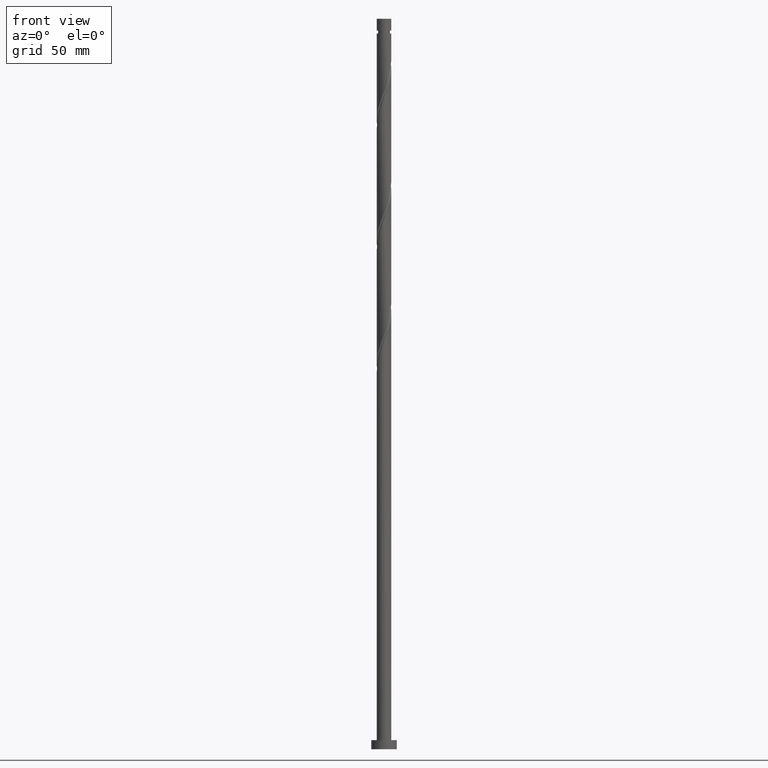
[diagram: clean part render]
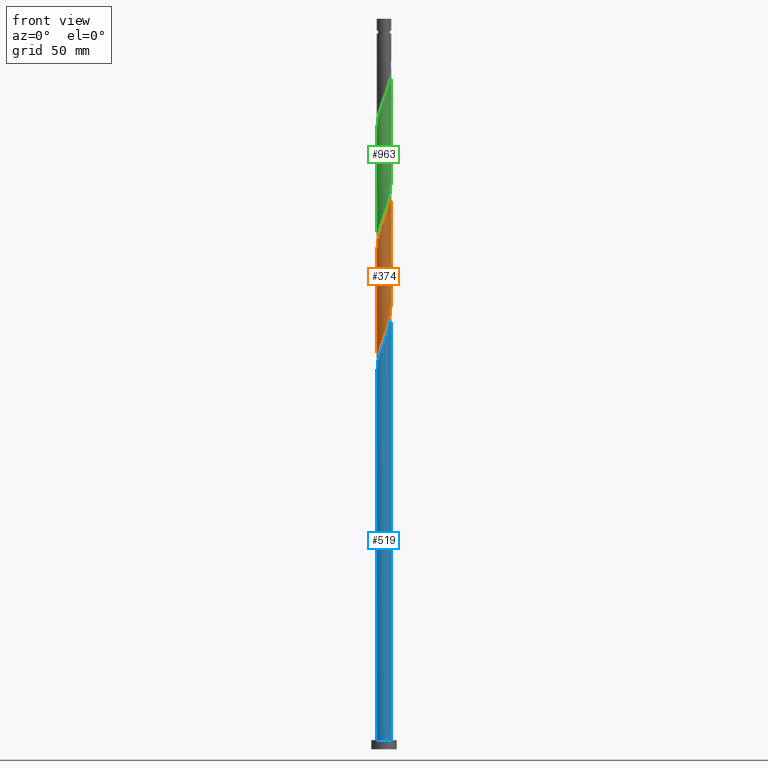
[diagram: same view with three faces highlighted in distinct colors, each labeled with its STEP entity id]
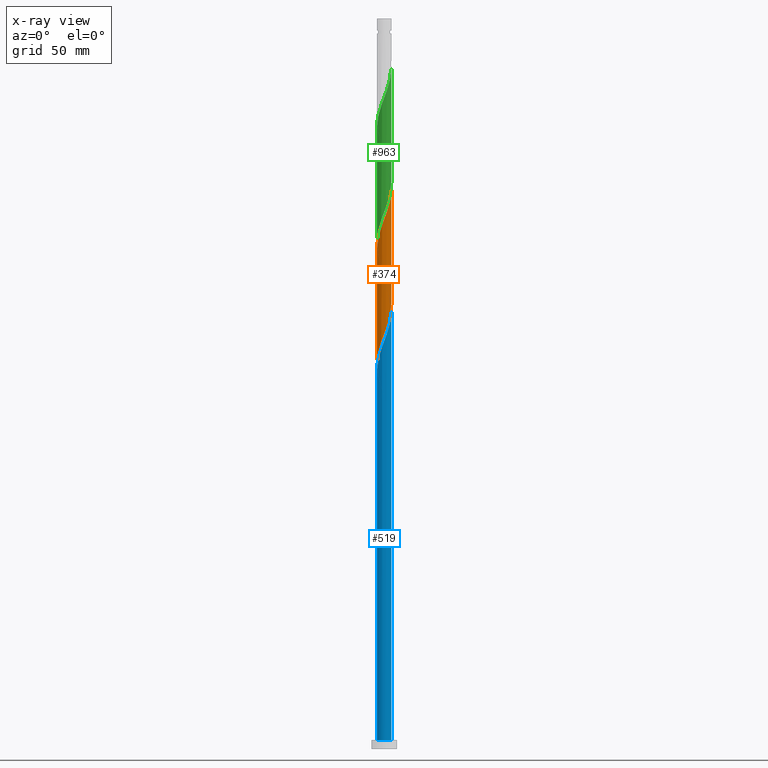
[diagram: x-ray of the same camera — body ghosted, the three highlighted faces saturated]
A machine part, front view with three faces highlighted in distinct colors.
The next image is the same camera in x-ray (body ghosted, the three faces saturated) — at least one of them is partly hidden behind the body in this view.
Their STEP definitions:

[orange] entity #374 — the highlighted cylindrical surface (edge-blend (fillet) strip) has radius 4 mm, axis along (-0, -0, -1).
#26 = CARTESIAN_POINT ( 'NONE',  ( -3.482167122072590715, -1.968378046503451051, 278.5537905055193733 ) ) ;
#35 = CARTESIAN_POINT ( 'NONE',  ( -1.660148792339431578, -3.639217771347844632, 285.2204571721858315 ) ) ;
#45 = CARTESIAN_POINT ( 'NONE',  ( -3.232234306894791853, -2.393618973367495961, 217.4426793944081453 ) ) ;
#82 = VERTEX_POINT ( 'NONE', #641 ) ;
#88 = CARTESIAN_POINT ( 'NONE',  ( 4.000000000000007105, 3.198960900022307463E-15, 306.4283472619977715 ) ) ;
#108 = CARTESIAN_POINT ( 'NONE',  ( 3.275282252781091419, -2.334368558936171567, 237.4426793944081453 ) ) ;
#143 = CARTESIAN_POINT ( 'NONE',  ( -2.663940864372330797, -3.013331955735995216, 219.6649016166304023 ) ) ;
#161 = CARTESIAN_POINT ( 'NONE',  ( 1.979220423070280122, -3.501347872067852585, 295.2204571721858883 ) ) ;
#168 = CARTESIAN_POINT ( 'NONE',  ( -3.941592455888989655, -0.8003744848579158466, 275.2204571721858315 ) ) ;
#183 = CARTESIAN_POINT ( 'NONE',  ( -3.689051991364082461, -1.602387534070729425, 277.4426793944081169 ) ) ;
#203 = CARTESIAN_POINT ( 'NONE',  ( -3.981729436060738703, -0.3818778574459181785, 274.1093460610748593 ) ) ;
#219 = CARTESIAN_POINT ( 'NONE',  ( 2.663940864372333461, -3.013331955736001877, 297.4426793944081169 ) ) ;
#344 = CARTESIAN_POINT ( 'NONE',  ( -4.000000000000007105, -0.1913759971469952414, 273.6035624542284950 ) ) ;
#370 = EDGE_CURVE ( 'NONE', #1770, #1309, #1788, .T. ) ;
#374 = ADVANCED_FACE ( 'NONE', ( #712 ), #1332, .T. ) ;
#377 = CARTESIAN_POINT ( 'NONE',  ( 2.321580643721305570, -3.257339913901927009, 296.3315682832970310 ) ) ;
#440 = CARTESIAN_POINT ( 'NONE',  ( 4.000000000000000000, 4.898587196589411843E-16, 400.0000000000000000 ) ) ;
#461 = CARTESIAN_POINT ( 'NONE',  ( 3.689051991364075356, -1.602387534070730535, 239.6649016166303454 ) ) ;
#489 = CARTESIAN_POINT ( 'NONE',  ( -3.445748953559866212, -2.031456164686080257, 216.3315682832970879 ) ) ;
#508 = CARTESIAN_POINT ( 'NONE',  ( -0.8672346379929716242, -3.904856474016074053, 287.4426793944081169 ) ) ;
#542 = ORIENTED_EDGE ( 'NONE', *, *, #1133, .F. ) ;
#549 = CARTESIAN_POINT ( 'NONE',  ( 3.445748953559870209, -2.031456164686086474, 300.7760127277414881 ) ) ;
#584 = CARTESIAN_POINT ( 'NONE',  ( 2.380506478182901731, -3.214527789167365146, 234.1093460610747741 ) ) ;
#595 = CARTESIAN_POINT ( 'NONE',  ( 0.8672346379929668503, -3.904856474016069168, 229.6649016166304023 ) ) ;
#635 = CARTESIAN_POINT ( 'NONE',  ( -3.659263600224941015, -1.669293356004667217, 215.2204571721858599 ) ) ;
#641 = CARTESIAN_POINT ( 'NONE',  ( 4.000000000000007105, 3.198960900022307463E-15, 306.4283472619977715 ) ) ;
#642 = CARTESIAN_POINT ( 'NONE',  ( -4.000000000000006217, -4.544318287882156926E-15, 273.0950139286644571 ) ) ;
#644 = CARTESIAN_POINT ( 'NONE',  ( -3.275282252781098968, -2.334368558936172011, 279.6649016166302886 ) ) ;
#653 = CARTESIAN_POINT ( 'NONE',  ( -1.277651591516657748, -3.813706440593916280, 286.3315682832969742 ) ) ;
#712 = FACE_OUTER_BOUND ( 'NONE', #1149, .T. ) ;
#715 = AXIS2_PLACEMENT_3D ( 'NONE', #1181, #1058, #1396 ) ;
#731 = CARTESIAN_POINT ( 'NONE',  ( 0.4568176844692834471, -3.996006507438225164, 228.5537905055192596 ) ) ;
#743 = CARTESIAN_POINT ( 'NONE',  ( -0.3839813474438496521, -4.003661914940837896, 226.3315682832970310 ) ) ;
#751 = CARTESIAN_POINT ( 'NONE',  ( 1.660148792339427137, -3.639217771347839747, 231.8871238388525455 ) ) ;
#788 = CARTESIAN_POINT ( 'NONE',  ( -3.792814557677648413, -1.270652482415431939, 214.1093460610747741 ) ) ;
#800 = CARTESIAN_POINT ( 'NONE',  ( -3.926365515130357142, -0.8720116088261982146, 212.9982349499637451 ) ) ;
#817 = CARTESIAN_POINT ( 'NONE',  ( -0.03641816851272034611, -3.999834211189538191, 289.6649016166304591 ) ) ;
#858 = CARTESIAN_POINT ( 'NONE',  ( 2.948087585633564434, -2.703475464551750029, 298.5537905055192596 ) ) ;
#868 = CARTESIAN_POINT ( 'NONE',  ( 3.926365515130361139, -0.8720116088262039877, 304.1093460610747456 ) ) ;
#878 = CARTESIAN_POINT ( 'NONE',  ( 0.03641816851271704319, -3.999834211189530198, 227.4426793944080885 ) ) ;
#890 = CARTESIAN_POINT ( 'NONE',  ( 4.000000000000000000, 3.184012484601663295E-15, 244.0125670823741189 ) ) ;
#914 = CARTESIAN_POINT ( 'NONE',  ( -1.979220423070278789, -3.501347872067845479, 221.8871238388526308 ) ) ;
#932 = CARTESIAN_POINT ( 'NONE',  ( -3.815322223626536058, -1.201381009464323135, 276.3315682832971447 ) ) ;
#948 = CARTESIAN_POINT ( 'NONE',  ( -4.000000000000000000, -0.2278949497857207240, 211.2848250584252412 ) ) ;
#985 = VECTOR ( 'NONE', #1392, 1000.000000000000000 ) ;
#1007 = ORIENTED_EDGE ( 'NONE', *, *, #370, .T. ) ;
#1013 = CARTESIAN_POINT ( 'NONE',  ( -4.000000000000000000, 0.000000000000000000, 400.0000000000000000 ) ) ;
#1019 = CARTESIAN_POINT ( 'NONE',  ( 4.000000000000007105, -0.2278949497857263307, 305.8227559526131927 ) ) ;
#1058 = DIRECTION ( 'NONE',  ( -0.000000000000000000, -0.000000000000000000, -1.000000000000000000 ) ) ;
#1066 = CARTESIAN_POINT ( 'NONE',  ( 4.000000000000000000, -0.1913759971469987387, 243.5040185568100526 ) ) ;
#1088 = CARTESIAN_POINT ( 'NONE',  ( 3.482167122072584498, -1.968378046503449275, 238.5537905055192596 ) ) ;
#1104 = CARTESIAN_POINT ( 'NONE',  ( -3.999999999999999112, 6.353076553782659938E-15, 210.6792337490407192 ) ) ;
#1112 = CARTESIAN_POINT ( 'NONE',  ( -2.380506478182908392, -3.214527789167368699, 282.9982349499637166 ) ) ;
#1129 = ORIENTED_EDGE ( 'NONE', *, *, #1458, .F. ) ;
#1133 = EDGE_CURVE ( 'NONE', #1251, #1309, #1989, .T. ) ;
#1135 = CARTESIAN_POINT ( 'NONE',  ( 1.593609487498515609, -3.668842978563510826, 294.1093460610747456 ) ) ;
#1149 = EDGE_LOOP ( 'NONE', ( #1129, #1189, #1007, #542 ) ) ;
#1176 = CARTESIAN_POINT ( 'NONE',  ( 3.232234306894794962, -2.393618973367500846, 299.6649016166304591 ) ) ;
#1181 = CARTESIAN_POINT ( 'NONE',  ( 0.000000000000000000, 0.000000000000000000, 400.0000000000000000 ) ) ;
#1189 = ORIENTED_EDGE ( 'NONE', *, *, #1342, .F. ) ;
#1218 = CARTESIAN_POINT ( 'NONE',  ( -1.207998551926752429, -3.836338085059161518, 224.1093460610748309 ) ) ;
#1236 = CARTESIAN_POINT ( 'NONE',  ( 2.042645993162200302, -3.464729102101768099, 232.9982349499637166 ) ) ;
#1251 = VERTEX_POINT ( 'NONE', #1254 ) ;
#1254 = CARTESIAN_POINT ( 'NONE',  ( 4.000000000000000000, 3.184012484601662900E-15, 244.0125670823741189 ) ) ;
#1261 = VECTOR ( 'NONE', #1638, 1000.000000000000000 ) ;
#1263 = CARTESIAN_POINT ( 'NONE',  ( -2.996824607992354839, -2.649347517584568656, 280.7760127277415449 ) ) ;
#1272 = CARTESIAN_POINT ( 'NONE',  ( -3.974115965681417784, -0.4543151893961378529, 211.8871238388525171 ) ) ;
#1309 = VERTEX_POINT ( 'NONE', #1713 ) ;
#1327 = CARTESIAN_POINT ( 'NONE',  ( 3.974115965681424001, -0.4543151893961399068, 305.2204571721858883 ) ) ;
#1332 = CYLINDRICAL_SURFACE ( 'NONE', #715, 4.000000000000000000 ) ;
#1342 = EDGE_CURVE ( 'NONE', #1770, #82, #1370, .T. ) ;
#1348 = CARTESIAN_POINT ( 'NONE',  ( 2.718366963203604936, -2.964326476232963525, 235.2204571721858883 ) ) ;
#1370 =( BOUNDED_CURVE ( )  B_SPLINE_CURVE ( 2, ( #1565, #344, #203, #168, #932, #183, #26, #644, #1263, #1883, #1112, #1430, #35, #653, #508, #1593, #817, #1441, #1404, #2015, #1135, #161, #377, #219, #858, #1176, #549, #1951, #1753, #868, #1327, #1019, #88 ),
 .UNSPECIFIED., .F., .T. ) 
 B_SPLINE_CURVE_WITH_KNOTS ( ( 3, 2, 2, 2, 2, 2, 2, 2, 2, 2, 2, 2, 2, 2, 2, 2, 3 ),
 ( 0.3045286012773114059, 0.3083333333333333481, 0.3166666666666666519, 0.3249999999999999556, 0.3333333333333333703, 0.3416666666666666741, 0.3499999999999999778, 0.3583333333333332815, 0.3666666666666666963, 0.3750000000000000000, 0.3833333333333333037, 0.3916666666666667185, 0.4000000000000000222, 0.4083333333333333259, 0.4166666666666666297, 0.4250000000000000444, 0.4295286012773115725 ),
 .UNSPECIFIED. ) 
 CURVE ( )  GEOMETRIC_REPRESENTATION_ITEM ( )  RATIONAL_B_SPLINE_CURVE ( ( 0.9066196499552403587, 0.9068171577856529719, 0.9090909090909520263, 0.9041108139712001890, 0.9090909090909520263, 0.9041108139712001890, 0.9090909090909520263, 0.9041108139712001890, 0.9090909090909520263, 0.9041108139712001890, 0.9090909090909520263, 0.9041108139712001890, 0.9090909090909520263, 0.9041108139712001890, 0.9090909090909520263, 0.9041108139712001890, 0.9090909090909520263, 0.9041108139712001890, 0.9090909090909520263, 0.9041108139712001890, 0.9090909090909520263, 0.9041108139712001890, 0.9090909090909520263, 0.9041108139712001890, 0.9090909090909520263, 0.9041108139712001890, 0.9090909090909520263, 0.9041108139712001890, 0.9090909090909520263, 0.9041108139712001890, 0.9090909090909520263, 0.9063845652764990213, 0.9066196499552403587 ) ) 
 REPRESENTATION_ITEM ( '' )  );
#1392 = DIRECTION ( 'NONE',  ( -0.000000000000000000, -0.000000000000000000, -1.000000000000000000 ) ) ;
#1394 = CARTESIAN_POINT ( 'NONE',  ( 3.981729436060730709, -0.3818778574459209540, 242.9982349499637166 ) ) ;
#1396 = DIRECTION ( 'NONE',  ( -1.000000000000000000, 0.000000000000000000, 0.000000000000000000 ) ) ;
#1404 = CARTESIAN_POINT ( 'NONE',  ( 0.7959899496852994583, -3.920000000000006146, 291.8871238388526308 ) ) ;
#1430 = CARTESIAN_POINT ( 'NONE',  ( -2.042645993162204743, -3.464729102101772096, 284.1093460610748593 ) ) ;
#1441 = CARTESIAN_POINT ( 'NONE',  ( 0.3839813474438467100, -4.003661914940843225, 290.7760127277414313 ) ) ;
#1458 = EDGE_CURVE ( 'NONE', #82, #1251, #1833, .T. ) ;
#1516 = CARTESIAN_POINT ( 'NONE',  ( 3.941592455888983881, -0.8003744848579161797, 241.8871238388526308 ) ) ;
#1536 = CARTESIAN_POINT ( 'NONE',  ( -2.321580643721304682, -3.257339913901919459, 220.7760127277414597 ) ) ;
#1565 = CARTESIAN_POINT ( 'NONE',  ( -4.000000000000006217, -4.544318287882156137E-15, 273.0950139286644571 ) ) ;
#1593 = CARTESIAN_POINT ( 'NONE',  ( -0.4568176844692857785, -3.996006507438230937, 288.5537905055193164 ) ) ;
#1638 = DIRECTION ( 'NONE',  ( -0.000000000000000000, -0.000000000000000000, -1.000000000000000000 ) ) ;
#1702 = CARTESIAN_POINT ( 'NONE',  ( 1.277651591516652418, -3.813706440593913172, 230.7760127277414597 ) ) ;
#1713 = CARTESIAN_POINT ( 'NONE',  ( -3.999999999999999112, 6.353076553782659938E-15, 210.6792337490407192 ) ) ;
#1736 = CARTESIAN_POINT ( 'NONE',  ( -2.948087585633560437, -2.703475464551746033, 218.5537905055192027 ) ) ;
#1753 = CARTESIAN_POINT ( 'NONE',  ( 3.792814557677652854, -1.270652482415437712, 302.9982349499638303 ) ) ;
#1770 = VERTEX_POINT ( 'NONE', #642 ) ;
#1788 = LINE ( 'NONE', #1013, #1261 ) ;
#1833 = LINE ( 'NONE', #440, #985 ) ;
#1835 = CARTESIAN_POINT ( 'NONE',  ( -1.593609487498516053, -3.668842978563503276, 222.9982349499637166 ) ) ;
#1883 = CARTESIAN_POINT ( 'NONE',  ( -2.718366963203608933, -2.964326476232966634, 281.8871238388525740 ) ) ;
#1951 = CARTESIAN_POINT ( 'NONE',  ( 3.659263600224945900, -1.669293356004671214, 301.8871238388525171 ) ) ;
#1965 = CARTESIAN_POINT ( 'NONE',  ( -0.7959899496852999023, -3.919999999999999041, 225.2204571721858883 ) ) ;
#1986 = CARTESIAN_POINT ( 'NONE',  ( 2.996824607992347733, -2.649347517584566436, 236.3315682832970026 ) ) ;
#1989 =( BOUNDED_CURVE ( )  B_SPLINE_CURVE ( 2, ( #890, #1066, #1394, #1516, #2008, #461, #1088, #108, #1986, #1348, #584, #1236, #751, #1702, #595, #731, #878, #743, #1965, #1218, #1835, #914, #1536, #143, #1736, #45, #489, #635, #788, #800, #1272, #948, #1104 ),
 .UNSPECIFIED., .F., .T. ) 
 B_SPLINE_CURVE_WITH_KNOTS ( ( 3, 2, 2, 2, 2, 2, 2, 2, 2, 2, 2, 2, 2, 2, 2, 2, 3 ),
 ( 0.8045286012773114059, 0.8083333333333333481, 0.8166666666666666519, 0.8249999999999999556, 0.8333333333333333703, 0.8416666666666666741, 0.8499999999999999778, 0.8583333333333332815, 0.8666666666666666963, 0.8750000000000000000, 0.8833333333333333037, 0.8916666666666667185, 0.9000000000000000222, 0.9083333333333333259, 0.9166666666666666297, 0.9250000000000000444, 0.9295286012773116280 ),
 .UNSPECIFIED. ) 
 CURVE ( )  GEOMETRIC_REPRESENTATION_ITEM ( )  RATIONAL_B_SPLINE_CURVE ( ( 0.9066196499552343635, 0.9068171577856470877, 0.9090909090909460311, 0.9041108139711943048, 0.9090909090909460311, 0.9041108139711943048, 0.9090909090909460311, 0.9041108139711943048, 0.9090909090909460311, 0.9041108139711943048, 0.9090909090909460311, 0.9041108139711943048, 0.9090909090909460311, 0.9041108139711943048, 0.9090909090909460311, 0.9041108139711943048, 0.9090909090909460311, 0.9041108139711943048, 0.9090909090909460311, 0.9041108139711943048, 0.9090909090909460311, 0.9041108139711943048, 0.9090909090909460311, 0.9041108139711943048, 0.9090909090909460311, 0.9041108139711943048, 0.9090909090909460311, 0.9041108139711943048, 0.9090909090909460311, 0.9041108139711943048, 0.9090909090909460311, 0.9063845652764931371, 0.9066196499552343635 ) ) 
 REPRESENTATION_ITEM ( '' )  );
#2008 = CARTESIAN_POINT ( 'NONE',  ( 3.815322223626528508, -1.201381009464324467, 240.7760127277414313 ) ) ;
#2015 = CARTESIAN_POINT ( 'NONE',  ( 1.207998551926750874, -3.836338085059168623, 292.9982349499636598 ) ) ;

[blue] entity #519 — the highlighted cylindrical surface (edge-blend (fillet) strip) has radius 4 mm, axis along (-0, -0, -1).
#32 = DIRECTION ( 'NONE',  ( -0.000000000000000000, -0.000000000000000000, -1.000000000000000000 ) ) ;
#53 = CARTESIAN_POINT ( 'NONE',  ( 1.207998551926750874, -3.836338085059168623, 226.3315682832970595 ) ) ;
#158 = LINE ( 'NONE', #191, #399 ) ;
#191 = CARTESIAN_POINT ( 'NONE',  ( -4.000000000000000000, 0.000000000000000000, 400.0000000000000000 ) ) ;
#201 = CARTESIAN_POINT ( 'NONE',  ( 4.000000000000000000, 4.898587196589411843E-16, 5.000000000000000000 ) ) ;
#217 = CARTESIAN_POINT ( 'NONE',  ( 3.792814557677652854, -1.270652482415437712, 236.3315682832970595 ) ) ;
#259 = DIRECTION ( 'NONE',  ( -0.000000000000000000, -0.000000000000000000, -1.000000000000000000 ) ) ;
#302 = DIRECTION ( 'NONE',  ( -0.000000000000000000, -0.000000000000000000, -1.000000000000000000 ) ) ;
#342 = CARTESIAN_POINT ( 'NONE',  ( -3.941592455888989655, -0.8003744848579158466, 208.5537905055192596 ) ) ;
#355 = DIRECTION ( 'NONE',  ( 1.000000000000000000, 0.000000000000000000, 0.000000000000000000 ) ) ;
#362 = CARTESIAN_POINT ( 'NONE',  ( 3.445748953559870209, -2.031456164686086474, 234.1093460610748309 ) ) ;
#399 = VECTOR ( 'NONE', #32, 1000.000000000000000 ) ;
#445 = ORIENTED_EDGE ( 'NONE', *, *, #1374, .T. ) ;
#506 = CARTESIAN_POINT ( 'NONE',  ( -0.4568176844692857785, -3.996006507438230937, 221.8871238388526308 ) ) ;
#519 = ADVANCED_FACE ( 'NONE', ( #1081 ), #784, .T. ) ;
#527 = CIRCLE ( 'NONE', #823, 4.000000000000000000 ) ;
#536 = CARTESIAN_POINT ( 'NONE',  ( 3.659263600224945900, -1.669293356004671214, 235.2204571721859452 ) ) ;
#538 = DIRECTION ( 'NONE',  ( 0.000000000000000000, 0.000000000000000000, 1.000000000000000000 ) ) ;
#551 = CARTESIAN_POINT ( 'NONE',  ( -4.000000000000000000, 0.000000000000000000, 5.000000000000000000 ) ) ;
#562 = CARTESIAN_POINT ( 'NONE',  ( 4.000000000000000000, 4.898587196589411843E-16, 400.0000000000000000 ) ) ;
#625 = CARTESIAN_POINT ( 'NONE',  ( -2.380506478182908392, -3.214527789167368699, 216.3315682832970595 ) ) ;
#662 = CARTESIAN_POINT ( 'NONE',  ( 1.979220423070280122, -3.501347872067852585, 228.5537905055192311 ) ) ;
#675 = CARTESIAN_POINT ( 'NONE',  ( 1.593609487498515609, -3.668842978563510826, 227.4426793944081453 ) ) ;
#696 = CARTESIAN_POINT ( 'NONE',  ( -1.277651591516657748, -3.813706440593916280, 219.6649016166303738 ) ) ;
#705 = CARTESIAN_POINT ( 'NONE',  ( -0.03641816851272034611, -3.999834211189538191, 222.9982349499637735 ) ) ;
#779 = CARTESIAN_POINT ( 'NONE',  ( -3.689051991364082461, -1.602387534070729425, 210.7760127277414881 ) ) ;
#784 = CYLINDRICAL_SURFACE ( 'NONE', #1914, 4.000000000000000000 ) ;
#815 = CARTESIAN_POINT ( 'NONE',  ( -3.815322223626536058, -1.201381009464323135, 209.6649016166303454 ) ) ;
#823 = AXIS2_PLACEMENT_3D ( 'NONE', #1460, #538, #355 ) ;
#854 = CARTESIAN_POINT ( 'NONE',  ( 0.3839813474438467100, -4.003661914940843225, 224.1093460610748309 ) ) ;
#860 = CARTESIAN_POINT ( 'NONE',  ( -4.000000000000006217, -4.544318287882156926E-15, 206.4283472619977999 ) ) ;
#907 = VERTEX_POINT ( 'NONE', #860 ) ;
#969 = CARTESIAN_POINT ( 'NONE',  ( -3.482167122072590715, -1.968378046503451051, 211.8871238388526024 ) ) ;
#981 = EDGE_CURVE ( 'NONE', #1741, #1677, #1652, .T. ) ;
#1056 = ORIENTED_EDGE ( 'NONE', *, *, #1930, .F. ) ;
#1069 = CARTESIAN_POINT ( 'NONE',  ( 0.000000000000000000, 0.000000000000000000, 400.0000000000000000 ) ) ;
#1070 = VERTEX_POINT ( 'NONE', #551 ) ;
#1081 = FACE_OUTER_BOUND ( 'NONE', #1622, .T. ) ;
#1110 = CARTESIAN_POINT ( 'NONE',  ( 4.000000000000007105, 3.198960900022307463E-15, 239.7616805953311427 ) ) ;
#1131 = CARTESIAN_POINT ( 'NONE',  ( 2.663940864372333461, -3.013331955736001877, 230.7760127277414881 ) ) ;
#1144 = CARTESIAN_POINT ( 'NONE',  ( 2.948087585633564434, -2.703475464551750029, 231.8871238388526592 ) ) ;
#1155 = CARTESIAN_POINT ( 'NONE',  ( 2.321580643721305570, -3.257339913901927009, 229.6649016166304307 ) ) ;
#1165 =( BOUNDED_CURVE ( )  B_SPLINE_CURVE ( 2, ( #1572, #1890, #1742, #342, #815, #779, #969, #1590, #1439, #2013, #625, #1242, #1167, #696, #1325, #506, #705, #854, #1316, #53, #675, #662, #1155, #1131, #1144, #1478, #362, #536, #217, #1281, #1781, #1293, #1790 ),
 .UNSPECIFIED., .F., .T. ) 
 B_SPLINE_CURVE_WITH_KNOTS ( ( 3, 2, 2, 2, 2, 2, 2, 2, 2, 2, 2, 2, 2, 2, 2, 2, 3 ),
 ( 0.05452860127731155859, 0.05833333333333334814, 0.06666666666666665186, 0.07499999999999995559, 0.08333333333333337034, 0.09166666666666667407, 0.09999999999999997780, 0.1083333333333332815, 0.1166666666666666963, 0.1250000000000000000, 0.1333333333333333037, 0.1416666666666667185, 0.1500000000000000222, 0.1583333333333333259, 0.1666666666666666297, 0.1750000000000000444, 0.1795286012773115170 ),
 .UNSPECIFIED. ) 
 CURVE ( )  GEOMETRIC_REPRESENTATION_ITEM ( )  RATIONAL_B_SPLINE_CURVE ( ( 0.9066196499552403587, 0.9068171577856531940, 0.9090909090909520263, 0.9041108139712001890, 0.9090909090909520263, 0.9041108139712001890, 0.9090909090909520263, 0.9041108139712001890, 0.9090909090909520263, 0.9041108139712001890, 0.9090909090909520263, 0.9041108139712001890, 0.9090909090909520263, 0.9041108139712001890, 0.9090909090909520263, 0.9041108139712001890, 0.9090909090909520263, 0.9041108139712001890, 0.9090909090909520263, 0.9041108139712001890, 0.9090909090909520263, 0.9041108139712001890, 0.9090909090909520263, 0.9041108139712001890, 0.9090909090909520263, 0.9041108139712001890, 0.9090909090909520263, 0.9041108139712001890, 0.9090909090909520263, 0.9041108139712001890, 0.9090909090909520263, 0.9063845652764991323, 0.9066196499552403587 ) ) 
 REPRESENTATION_ITEM ( '' )  );
#1167 = CARTESIAN_POINT ( 'NONE',  ( -1.660148792339431578, -3.639217771347844632, 218.5537905055192880 ) ) ;
#1242 = CARTESIAN_POINT ( 'NONE',  ( -2.042645993162204743, -3.464729102101772096, 217.4426793944081169 ) ) ;
#1281 = CARTESIAN_POINT ( 'NONE',  ( 3.926365515130361139, -0.8720116088262039877, 237.4426793944082021 ) ) ;
#1293 = CARTESIAN_POINT ( 'NONE',  ( 4.000000000000006217, -0.2278949497857290507, 239.1560892859465639 ) ) ;
#1316 = CARTESIAN_POINT ( 'NONE',  ( 0.7959899496852994583, -3.920000000000006146, 225.2204571721859452 ) ) ;
#1325 = CARTESIAN_POINT ( 'NONE',  ( -0.8672346379929716242, -3.904856474016074053, 220.7760127277414597 ) ) ;
#1374 = EDGE_CURVE ( 'NONE', #1070, #1677, #527, .T. ) ;
#1439 = CARTESIAN_POINT ( 'NONE',  ( -2.996824607992354839, -2.649347517584568656, 214.1093460610748593 ) ) ;
#1447 = ORIENTED_EDGE ( 'NONE', *, *, #981, .F. ) ;
#1460 = CARTESIAN_POINT ( 'NONE',  ( 0.000000000000000000, 0.000000000000000000, 5.000000000000000000 ) ) ;
#1478 = CARTESIAN_POINT ( 'NONE',  ( 3.232234306894794962, -2.393618973367500846, 232.9982349499637451 ) ) ;
#1572 = CARTESIAN_POINT ( 'NONE',  ( -4.000000000000006217, -4.544318287882156137E-15, 206.4283472619977999 ) ) ;
#1590 = CARTESIAN_POINT ( 'NONE',  ( -3.275282252781098968, -2.334368558936172011, 212.9982349499636598 ) ) ;
#1618 = ORIENTED_EDGE ( 'NONE', *, *, #1911, .T. ) ;
#1622 = EDGE_LOOP ( 'NONE', ( #1447, #1056, #1618, #445 ) ) ;
#1652 = LINE ( 'NONE', #562, #1829 ) ;
#1677 = VERTEX_POINT ( 'NONE', #201 ) ;
#1688 = DIRECTION ( 'NONE',  ( -1.000000000000000000, 0.000000000000000000, 0.000000000000000000 ) ) ;
#1741 = VERTEX_POINT ( 'NONE', #1110 ) ;
#1742 = CARTESIAN_POINT ( 'NONE',  ( -3.981729436060738703, -0.3818778574459181785, 207.4426793944081737 ) ) ;
#1781 = CARTESIAN_POINT ( 'NONE',  ( 3.974115965681424001, -0.4543151893961399068, 238.5537905055193164 ) ) ;
#1790 = CARTESIAN_POINT ( 'NONE',  ( 4.000000000000007105, 3.198960900022307463E-15, 239.7616805953311427 ) ) ;
#1829 = VECTOR ( 'NONE', #259, 1000.000000000000000 ) ;
#1890 = CARTESIAN_POINT ( 'NONE',  ( -4.000000000000005329, -0.1913759971470028187, 206.9368957875617525 ) ) ;
#1911 = EDGE_CURVE ( 'NONE', #907, #1070, #158, .T. ) ;
#1914 = AXIS2_PLACEMENT_3D ( 'NONE', #1069, #302, #1688 ) ;
#1930 = EDGE_CURVE ( 'NONE', #907, #1741, #1165, .T. ) ;
#2013 = CARTESIAN_POINT ( 'NONE',  ( -2.718366963203608933, -2.964326476232966634, 215.2204571721858883 ) ) ;

[green] entity #963 — the highlighted cylindrical surface (edge-blend (fillet) strip) has radius 4 mm, axis along (-0, -0, -1).
#10 = EDGE_CURVE ( 'NONE', #532, #704, #120, .T. ) ;
#67 = CARTESIAN_POINT ( 'NONE',  ( 3.445748953559870209, -2.031456164686086474, 367.4426793944082306 ) ) ;
#90 = DIRECTION ( 'NONE',  ( -1.000000000000000000, 0.000000000000000000, 0.000000000000000000 ) ) ;
#96 = CARTESIAN_POINT ( 'NONE',  ( 3.232234306894794962, -2.393618973367500846, 366.3315682832969742 ) ) ;
#99 = CARTESIAN_POINT ( 'NONE',  ( -3.792814557677648413, -1.270652482415431939, 280.7760127277414313 ) ) ;
#120 =( BOUNDED_CURVE ( )  B_SPLINE_CURVE ( 2, ( #732, #1349, #282, #1198, #904, #131, #752, #552, #1815, #423, #269, #891, #1795, #1517, #1375, #861, #1987, #1330, #597, #1067, #1646, #1484, #402, #710, #1023, #1946, #250, #871, #99, #144, #300, #829, #1801 ),
 .UNSPECIFIED., .F., .T. ) 
 B_SPLINE_CURVE_WITH_KNOTS ( ( 3, 2, 2, 2, 2, 2, 2, 2, 2, 2, 2, 2, 2, 2, 2, 2, 3 ),
 ( 0.5545286012773112949, 0.5583333333333333481, 0.5666666666666666519, 0.5749999999999999556, 0.5833333333333333703, 0.5916666666666666741, 0.5999999999999999778, 0.6083333333333332815, 0.6166666666666666963, 0.6250000000000000000, 0.6333333333333333037, 0.6416666666666667185, 0.6500000000000000222, 0.6583333333333333259, 0.6666666666666666297, 0.6750000000000000444, 0.6795286012773115170 ),
 .UNSPECIFIED. ) 
 CURVE ( )  GEOMETRIC_REPRESENTATION_ITEM ( )  RATIONAL_B_SPLINE_CURVE ( ( 0.9066196499552343635, 0.9068171577856469767, 0.9090909090909460311, 0.9041108139711943048, 0.9090909090909460311, 0.9041108139711943048, 0.9090909090909460311, 0.9041108139711943048, 0.9090909090909460311, 0.9041108139711943048, 0.9090909090909460311, 0.9041108139711943048, 0.9090909090909460311, 0.9041108139711943048, 0.9090909090909460311, 0.9041108139711943048, 0.9090909090909460311, 0.9041108139711943048, 0.9090909090909460311, 0.9041108139711943048, 0.9090909090909460311, 0.9041108139711943048, 0.9090909090909460311, 0.9041108139711943048, 0.9090909090909460311, 0.9041108139711943048, 0.9090909090909460311, 0.9041108139711943048, 0.9090909090909460311, 0.9041108139711943048, 0.9090909090909460311, 0.9063845652764932481, 0.9066196499552344745 ) ) 
 REPRESENTATION_ITEM ( '' )  );
#131 = CARTESIAN_POINT ( 'NONE',  ( 3.689051991364075356, -1.602387534070730535, 306.3315682832970310 ) ) ;
#144 = CARTESIAN_POINT ( 'NONE',  ( -3.926365515130357142, -0.8720116088261982146, 279.6649016166304023 ) ) ;
#211 = CARTESIAN_POINT ( 'NONE',  ( -3.941592455888989655, -0.8003744848579158466, 341.8871238388526876 ) ) ;
#250 = CARTESIAN_POINT ( 'NONE',  ( -3.445748953559866212, -2.031456164686080257, 282.9982349499637735 ) ) ;
#269 = CARTESIAN_POINT ( 'NONE',  ( 2.380506478182901731, -3.214527789167365146, 300.7760127277414313 ) ) ;
#282 = CARTESIAN_POINT ( 'NONE',  ( 3.981729436060730709, -0.3818778574459209540, 309.6649016166303454 ) ) ;
#300 = CARTESIAN_POINT ( 'NONE',  ( -3.974115965681417784, -0.4543151893961378529, 278.5537905055192027 ) ) ;
#366 = CARTESIAN_POINT ( 'NONE',  ( -0.8672346379929716242, -3.904856474016074053, 354.1093460610746888 ) ) ;
#369 = LINE ( 'NONE', #1635, #1508 ) ;
#380 = FACE_OUTER_BOUND ( 'NONE', #393, .T. ) ;
#383 = VERTEX_POINT ( 'NONE', #1667 ) ;
#393 = EDGE_LOOP ( 'NONE', ( #824, #1589, #1302, #1241 ) ) ;
#397 = CARTESIAN_POINT ( 'NONE',  ( 2.321580643721305570, -3.257339913901927009, 362.9982349499637735 ) ) ;
#401 = CARTESIAN_POINT ( 'NONE',  ( 0.000000000000000000, 0.000000000000000000, 400.0000000000000000 ) ) ;
#402 = CARTESIAN_POINT ( 'NONE',  ( -2.321580643721304682, -3.257339913901919459, 287.4426793944081737 ) ) ;
#423 = CARTESIAN_POINT ( 'NONE',  ( 2.718366963203604936, -2.964326476232963525, 301.8871238388525740 ) ) ;
#465 = VECTOR ( 'NONE', #1422, 1000.000000000000000 ) ;
#518 = CARTESIAN_POINT ( 'NONE',  ( -3.275282252781098968, -2.334368558936172011, 346.3315682832970310 ) ) ;
#529 = CARTESIAN_POINT ( 'NONE',  ( -4.000000000000005329, -0.1913759971470063437, 340.2702291208951806 ) ) ;
#532 = VERTEX_POINT ( 'NONE', #1407 ) ;
#552 = CARTESIAN_POINT ( 'NONE',  ( 3.275282252781091419, -2.334368558936171567, 304.1093460610748025 ) ) ;
#559 = CARTESIAN_POINT ( 'NONE',  ( 4.000000000000006217, -0.2278949497857290507, 372.4894226192798214 ) ) ;
#597 = CARTESIAN_POINT ( 'NONE',  ( -0.7959899496852999023, -3.919999999999999041, 291.8871238388525171 ) ) ;
#627 = LINE ( 'NONE', #1744, #465 ) ;
#677 = CARTESIAN_POINT ( 'NONE',  ( -0.03641816851272034611, -3.999834211189538191, 356.3315682832970310 ) ) ;
#686 = CARTESIAN_POINT ( 'NONE',  ( 3.974115965681424001, -0.4543151893961399068, 371.8871238388526308 ) ) ;
#704 = VERTEX_POINT ( 'NONE', #1117 ) ;
#710 = CARTESIAN_POINT ( 'NONE',  ( -2.663940864372330797, -3.013331955735995216, 286.3315682832970310 ) ) ;
#717 = CARTESIAN_POINT ( 'NONE',  ( -3.689051991364082461, -1.602387534070729425, 344.1093460610747456 ) ) ;
#732 = CARTESIAN_POINT ( 'NONE',  ( 4.000000000000000000, 3.184012484601663295E-15, 310.6792337490408045 ) ) ;
#752 = CARTESIAN_POINT ( 'NONE',  ( 3.482167122072584498, -1.968378046503449275, 305.2204571721858315 ) ) ;
#824 = ORIENTED_EDGE ( 'NONE', *, *, #950, .F. ) ;
#829 = CARTESIAN_POINT ( 'NONE',  ( -3.999999999999999112, -0.2278949497857263029, 277.9514917250918984 ) ) ;
#838 = CARTESIAN_POINT ( 'NONE',  ( -0.4568176844692857785, -3.996006507438230937, 355.2204571721860020 ) ) ;
#847 = CARTESIAN_POINT ( 'NONE',  ( -3.482167122072590715, -1.968378046503451051, 345.2204571721858315 ) ) ;
#861 = CARTESIAN_POINT ( 'NONE',  ( 0.4568176844692834471, -3.996006507438225164, 295.2204571721858883 ) ) ;
#871 = CARTESIAN_POINT ( 'NONE',  ( -3.659263600224941015, -1.669293356004667217, 281.8871238388526876 ) ) ;
#891 = CARTESIAN_POINT ( 'NONE',  ( 2.042645993162200302, -3.464729102101768099, 299.6649016166304023 ) ) ;
#904 = CARTESIAN_POINT ( 'NONE',  ( 3.815322223626528508, -1.201381009464324467, 307.4426793944080032 ) ) ;
#950 = EDGE_CURVE ( 'NONE', #383, #532, #369, .T. ) ;
#963 = ADVANCED_FACE ( 'NONE', ( #380 ), #1179, .T. ) ;
#979 = CARTESIAN_POINT ( 'NONE',  ( -2.042645993162204743, -3.464729102101772096, 350.7760127277414881 ) ) ;
#990 = CARTESIAN_POINT ( 'NONE',  ( -2.380506478182908392, -3.214527789167368699, 349.6649016166304023 ) ) ;
#1000 = CARTESIAN_POINT ( 'NONE',  ( 3.926365515130361139, -0.8720116088262039877, 370.7760127277414313 ) ) ;
#1009 = CARTESIAN_POINT ( 'NONE',  ( -3.815322223626536058, -1.201381009464323135, 342.9982349499637166 ) ) ;
#1023 = CARTESIAN_POINT ( 'NONE',  ( -2.948087585633560437, -2.703475464551746033, 285.2204571721858883 ) ) ;
#1067 = CARTESIAN_POINT ( 'NONE',  ( -1.207998551926752429, -3.836338085059161518, 290.7760127277414881 ) ) ;
#1117 = CARTESIAN_POINT ( 'NONE',  ( -3.999999999999999112, 6.353076553782659938E-15, 277.3459004157073196 ) ) ;
#1146 = CARTESIAN_POINT ( 'NONE',  ( 3.659263600224945900, -1.669293356004671214, 368.5537905055192596 ) ) ;
#1150 =( BOUNDED_CURVE ( )  B_SPLINE_CURVE ( 2, ( #1923, #529, #1774, #211, #1009, #717, #847, #518, #1792, #1642, #990, #979, #1763, #1614, #366, #838, #677, #1158, #1319, #1295, #1633, #1943, #397, #1169, #1489, #96, #67, #1146, #1335, #1000, #686, #559, #1603 ),
 .UNSPECIFIED., .F., .T. ) 
 B_SPLINE_CURVE_WITH_KNOTS ( ( 3, 2, 2, 2, 2, 2, 2, 2, 2, 2, 2, 2, 2, 2, 2, 2, 3 ),
 ( 0.5545286012773116280, 0.5583333333333333481, 0.5666666666666666519, 0.5749999999999999556, 0.5833333333333332593, 0.5916666666666666741, 0.5999999999999999778, 0.6083333333333333925, 0.6166666666666666963, 0.6250000000000000000, 0.6333333333333333037, 0.6416666666666666075, 0.6500000000000000222, 0.6583333333333333259, 0.6666666666666667407, 0.6750000000000000444, 0.6795286012773115170 ),
 .UNSPECIFIED. ) 
 CURVE ( )  GEOMETRIC_REPRESENTATION_ITEM ( )  RATIONAL_B_SPLINE_CURVE ( ( 0.9066196499552403587, 0.9068171577856531940, 0.9090909090909520263, 0.9041108139712001890, 0.9090909090909520263, 0.9041108139712001890, 0.9090909090909520263, 0.9041108139712001890, 0.9090909090909520263, 0.9041108139712001890, 0.9090909090909520263, 0.9041108139712001890, 0.9090909090909520263, 0.9041108139712001890, 0.9090909090909520263, 0.9041108139712001890, 0.9090909090909520263, 0.9041108139712001890, 0.9090909090909520263, 0.9041108139712001890, 0.9090909090909520263, 0.9041108139712001890, 0.9090909090909520263, 0.9041108139712001890, 0.9090909090909520263, 0.9041108139712001890, 0.9090909090909520263, 0.9041108139712001890, 0.9090909090909520263, 0.9041108139712001890, 0.9090909090909520263, 0.9063845652764991323, 0.9066196499552403587 ) ) 
 REPRESENTATION_ITEM ( '' )  );
#1158 = CARTESIAN_POINT ( 'NONE',  ( 0.3839813474438467100, -4.003661914940843225, 357.4426793944081169 ) ) ;
#1169 = CARTESIAN_POINT ( 'NONE',  ( 2.663940864372333461, -3.013331955736001877, 364.1093460610748025 ) ) ;
#1179 = CYLINDRICAL_SURFACE ( 'NONE', #1605, 4.000000000000000000 ) ;
#1198 = CARTESIAN_POINT ( 'NONE',  ( 3.941592455888983881, -0.8003744848579161797, 308.5537905055192596 ) ) ;
#1232 = CARTESIAN_POINT ( 'NONE',  ( -4.000000000000006217, -7.145342571077862261E-15, 339.7616805953311427 ) ) ;
#1241 = ORIENTED_EDGE ( 'NONE', *, *, #10, .F. ) ;
#1295 = CARTESIAN_POINT ( 'NONE',  ( 1.207998551926750874, -3.836338085059168623, 359.6649016166304591 ) ) ;
#1302 = ORIENTED_EDGE ( 'NONE', *, *, #1313, .T. ) ;
#1308 = DIRECTION ( 'NONE',  ( -0.000000000000000000, -0.000000000000000000, -1.000000000000000000 ) ) ;
#1313 = EDGE_CURVE ( 'NONE', #1719, #704, #627, .T. ) ;
#1319 = CARTESIAN_POINT ( 'NONE',  ( 0.7959899496852994583, -3.920000000000006146, 358.5537905055192027 ) ) ;
#1330 = CARTESIAN_POINT ( 'NONE',  ( -0.3839813474438496521, -4.003661914940837896, 292.9982349499636030 ) ) ;
#1335 = CARTESIAN_POINT ( 'NONE',  ( 3.792814557677652854, -1.270652482415437712, 369.6649016166304023 ) ) ;
#1349 = CARTESIAN_POINT ( 'NONE',  ( 4.000000000000000000, -0.1913759971469931320, 310.1706852234766529 ) ) ;
#1375 = CARTESIAN_POINT ( 'NONE',  ( 0.8672346379929668503, -3.904856474016069168, 296.3315682832970310 ) ) ;
#1407 = CARTESIAN_POINT ( 'NONE',  ( 4.000000000000000000, 3.184012484601662900E-15, 310.6792337490408045 ) ) ;
#1409 = EDGE_CURVE ( 'NONE', #1719, #383, #1150, .T. ) ;
#1422 = DIRECTION ( 'NONE',  ( -0.000000000000000000, -0.000000000000000000, -1.000000000000000000 ) ) ;
#1484 = CARTESIAN_POINT ( 'NONE',  ( -1.979220423070278789, -3.501347872067845479, 288.5537905055193164 ) ) ;
#1489 = CARTESIAN_POINT ( 'NONE',  ( 2.948087585633564434, -2.703475464551750029, 365.2204571721859452 ) ) ;
#1508 = VECTOR ( 'NONE', #1954, 1000.000000000000000 ) ;
#1517 = CARTESIAN_POINT ( 'NONE',  ( 1.277651591516652418, -3.813706440593913172, 297.4426793944082306 ) ) ;
#1589 = ORIENTED_EDGE ( 'NONE', *, *, #1409, .F. ) ;
#1603 = CARTESIAN_POINT ( 'NONE',  ( 4.000000000000006217, 1.793809850479798151E-16, 373.0950139286644571 ) ) ;
#1605 = AXIS2_PLACEMENT_3D ( 'NONE', #401, #1308, #90 ) ;
#1614 = CARTESIAN_POINT ( 'NONE',  ( -1.277651591516657748, -3.813706440593916280, 352.9982349499636598 ) ) ;
#1633 = CARTESIAN_POINT ( 'NONE',  ( 1.593609487498515609, -3.668842978563510826, 360.7760127277416018 ) ) ;
#1635 = CARTESIAN_POINT ( 'NONE',  ( 4.000000000000000000, 4.898587196589411843E-16, 400.0000000000000000 ) ) ;
#1642 = CARTESIAN_POINT ( 'NONE',  ( -2.718366963203608933, -2.964326476232966634, 348.5537905055192596 ) ) ;
#1646 = CARTESIAN_POINT ( 'NONE',  ( -1.593609487498516053, -3.668842978563503276, 289.6649016166304023 ) ) ;
#1667 = CARTESIAN_POINT ( 'NONE',  ( 4.000000000000006217, 1.793809850479798151E-16, 373.0950139286644571 ) ) ;
#1719 = VERTEX_POINT ( 'NONE', #1232 ) ;
#1744 = CARTESIAN_POINT ( 'NONE',  ( -4.000000000000000000, 0.000000000000000000, 400.0000000000000000 ) ) ;
#1763 = CARTESIAN_POINT ( 'NONE',  ( -1.660148792339431578, -3.639217771347844632, 351.8871238388526308 ) ) ;
#1774 = CARTESIAN_POINT ( 'NONE',  ( -3.981729436060738703, -0.3818778574459181785, 340.7760127277415449 ) ) ;
#1792 = CARTESIAN_POINT ( 'NONE',  ( -2.996824607992354839, -2.649347517584568656, 347.4426793944082306 ) ) ;
#1795 = CARTESIAN_POINT ( 'NONE',  ( 1.660148792339427137, -3.639217771347839747, 298.5537905055192596 ) ) ;
#1801 = CARTESIAN_POINT ( 'NONE',  ( -3.999999999999999112, 6.353076553782659938E-15, 277.3459004157073196 ) ) ;
#1815 = CARTESIAN_POINT ( 'NONE',  ( 2.996824607992347733, -2.649347517584566436, 302.9982349499637735 ) ) ;
#1923 = CARTESIAN_POINT ( 'NONE',  ( -4.000000000000006217, -7.145342571077862261E-15, 339.7616805953311427 ) ) ;
#1943 = CARTESIAN_POINT ( 'NONE',  ( 1.979220423070280122, -3.501347872067852585, 361.8871238388525740 ) ) ;
#1946 = CARTESIAN_POINT ( 'NONE',  ( -3.232234306894791853, -2.393618973367495961, 284.1093460610749162 ) ) ;
#1954 = DIRECTION ( 'NONE',  ( -0.000000000000000000, -0.000000000000000000, -1.000000000000000000 ) ) ;
#1987 = CARTESIAN_POINT ( 'NONE',  ( 0.03641816851271704319, -3.999834211189530198, 294.1093460610746888 ) ) ;